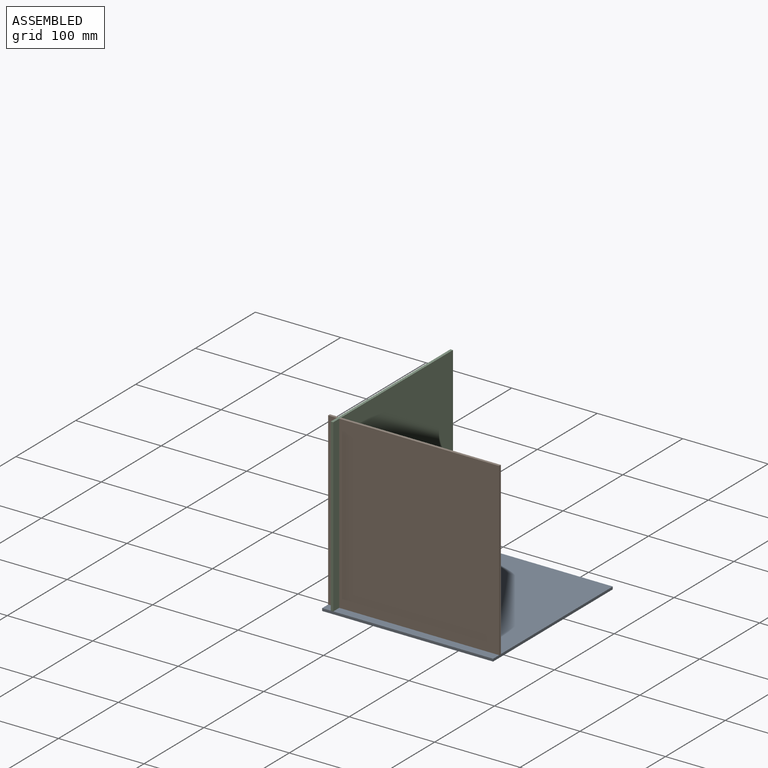
[diagram: assembled view]
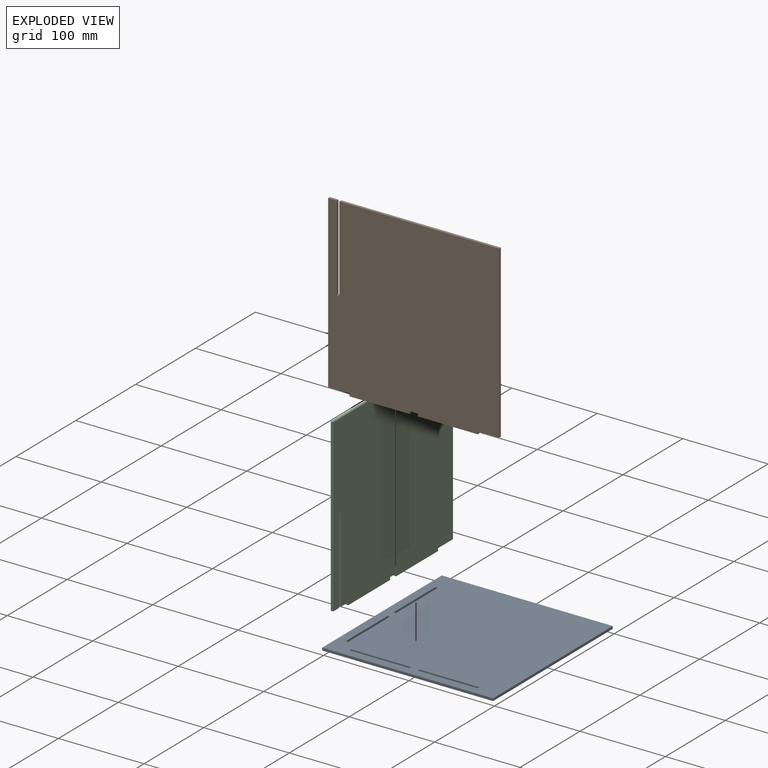
[diagram: exploded view]
GUIDED TOUR — MATED ASSEMBLY (Onshape document 3c1b18b29e7f86476bbb0f8e, AutoMate assembly 3c1b18b29e7f86476bbb0f8e_5ff9b196401ef1f9431cde9a_0508b4e4f888a0a57023cb8f_default)

This assembly has 3 components, labeled P0..P2 below (a component is one placed occurrence of a part; the same part can appear more than once), held together by 6 mates. A mate is a constraint between two components; its type names the relative motion it leaves free:
  PLANAR — leaves sliding in the plane through the listed point (normal = the listed direction) and rotation about that normal free.
Axis/direction vectors are unit vectors and 'through' points are millimeter coordinates, both in the assembly's world frame.

MATES
  1. PLANAR "Planar 4": P2 <-> P1, direction (0.000, -1.000, 0.000) through (-89.45, -87.95, 50.00) mm
  2. PLANAR "Planar 3": P2 <-> P1, direction (0.000, 0.000, -1.000) through (-89.45, -89.45, 100.00) mm
  3. PLANAR "Planar 2": P2 <-> P1, direction (1.000, 0.000, 0.000) through (-87.95, -0.29, 99.31) mm
  4. PLANAR "Planar 6": P1 <-> P0, direction (-1.000, 0.000, 0.000) through (-100.95, -89.45, 100.00) mm
  5. PLANAR "Planar 5": P2 <-> P0, direction (0.000, -1.000, 0.000) through (-89.45, -100.95, 100.00) mm
  6. PLANAR "Planar 1": P1 <-> P0, direction (0.000, 0.000, -1.000) through (-88.45, -89.45, 0.00) mm

ASSEMBLY ORDER
  1. P2 — the base component [order verified]
  2. P0 [order verified]
  3. P1 [order verified]
Order-tag legend:
  [order verified] — this step's position reverses a verified removal order: the component was checked to insert without passing through the ones already placed.

Of the 3 components, 3 carry the full construction recipe — the FeatureScript program that regenerates the part's solid from scratch; the rest are supplied as boundary geometry only.
Each toured component is shown spotlighted twice — in the assembled view, then in the exploded view, where a leader line traces a displaced component back to its assembled socket (saturated green if recipe-attached, orange if geometry-only; every other component desaturated gray) — followed by its recipe or geometry summary and the mates that hold it.
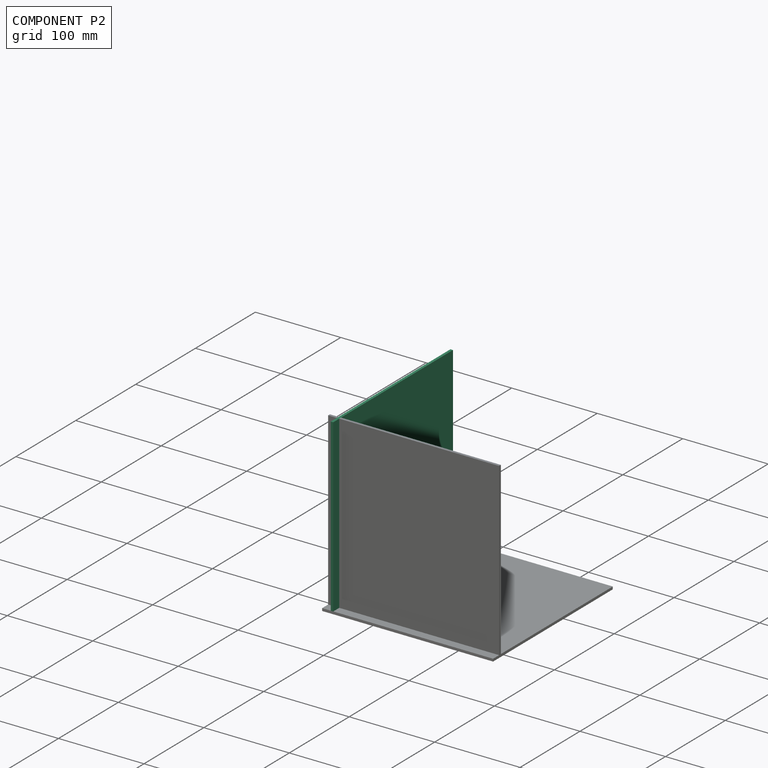
[diagram: component P2 — assembled]
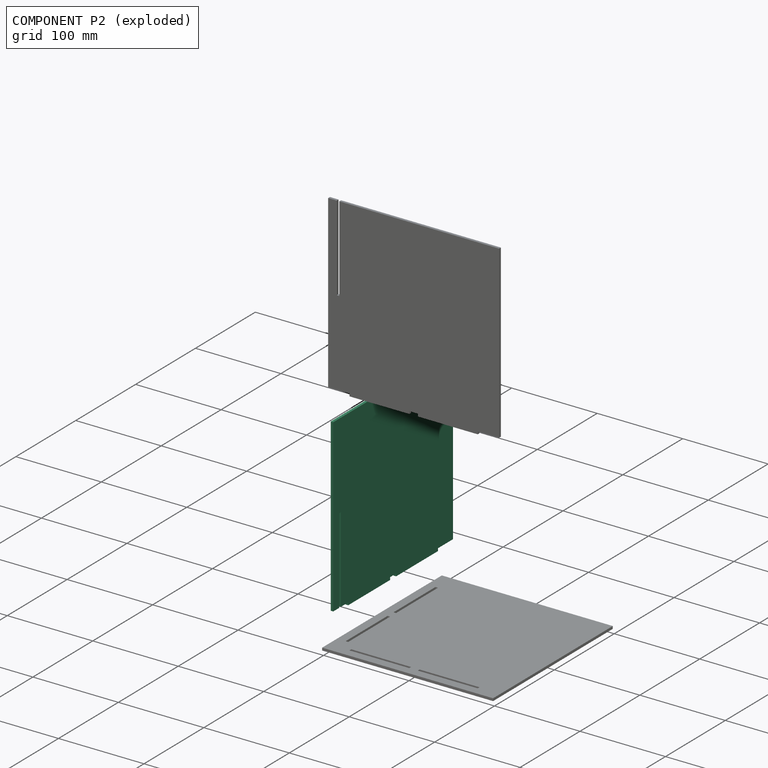
[diagram: component P2 — exploded]
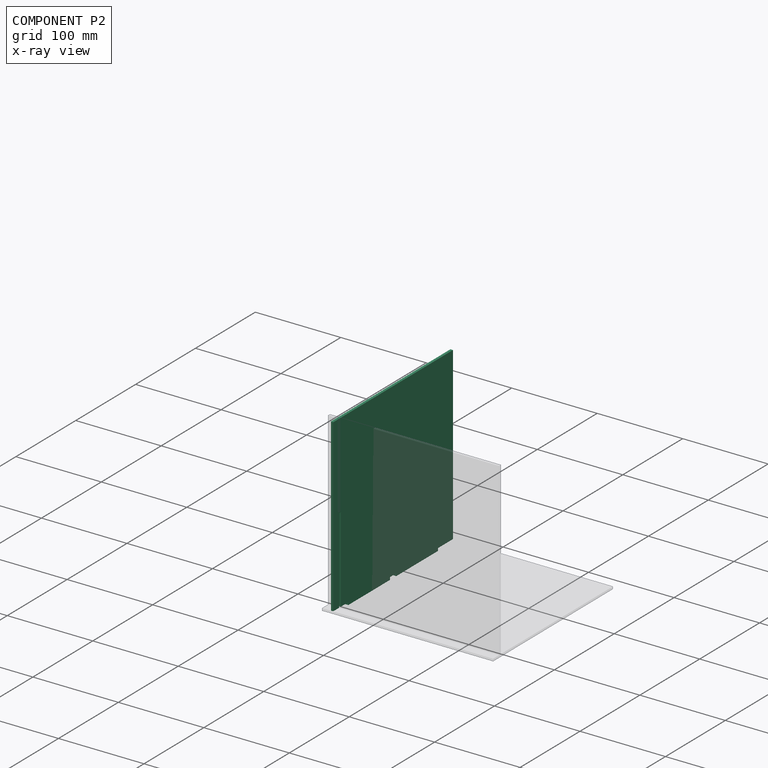
[diagram: component P2 — x-ray view]
COMPONENT P2 — recipe-attached (CADFS 00972658, mesh-verified: the recipe's output STEP matches this component's geometry to below the mesh-comparison resolution (tessellation chordal tolerance ~0.427 mm)).
Held by: PLANAR mate "Planar 4" to P1; PLANAR mate "Planar 3" to P1; PLANAR mate "Planar 2" to P1; PLANAR mate "Planar 5" to P0.
Construction recipe (FeatureScript — the CAD program that rebuilds this solid; sketch coordinates are in the units given by the * unit suffixes, e.g. mm):

FeatureScript 1511;
import(path : "onshape/std/geometry.fs", version : "1511.0");
import(path : "onshape/std/common.fs", version : "1511.0");
const mm = millimeter;
const VERTEX = EntityType.VERTEX;
const EDGE = EntityType.EDGE;
const FACE = EntityType.FACE;
const BODY = EntityType.BODY;
function v(x, y){return vector(x, y);}
function OD(order){return orderDisambiguation(order);}
function OSD(set){return originalSetDisambiguation(set);}
function TD(topology){return topologyDisambiguation(topology);}
function TDD(query){return trueDependencyDisambiguation(query);}
function sQuery(a, b, c) {return sketchEntityQuery(a, b, c);}

annotation { "Feature Type Name" : "Feature", "Feature Type Description" : "" }
export const myFeature = defineFeature(function(context is Context, id is Id, definition is map)
    precondition{}
    {
        {
            var Q0;
            Q0=qCreatedBy(makeId("Front.planeOp"),FACE);
            var sketch = newSketch(context, id + "F0", { "sketchPlane" : qUnion([Q0])});
            skLineSegment(sketch, "E0.bottom", {"start": v(-81.86, 146.71) * mm, "end": v(118.14, 146.71) * mm});
            skLineSegment(sketch, "E0.top", {"start": v(-81.86, -53.29) * mm, "end": v(118.14, -53.29) * mm});
            skLineSegment(sketch, "E0.left", {"start": v(-81.86, 146.71) * mm, "end": v(-81.86, -53.29) * mm});
            skLineSegment(sketch, "E0.right", {"start": v(118.14, 146.71) * mm, "end": v(118.14, -53.29) * mm});
            skLineSegment(sketch, "E1.bottom", {"start": v(-71.86, -53.29) * mm, "end": v(-68.86, -53.29) * mm});
            skLineSegment(sketch, "E1.top", {"start": v(-71.86, 46.71) * mm, "end": v(-68.86, 46.71) * mm});
            skLineSegment(sketch, "E1.left", {"start": v(-71.86, -53.29) * mm, "end": v(-71.86, 46.71) * mm});
            skLineSegment(sketch, "E1.right", {"start": v(-68.86, -53.29) * mm, "end": v(-68.86, 46.71) * mm});
            skPoint(sketch, "E2", {"position": v(-81.86, 46.71) * mm});
            skLineSegment(sketch, "E3.left", {"start": v(118.14, -43.29) * mm, "end": v(118.14, -40.29) * mm});
            skPoint(sketch, "E4", {"position": v(18.14, -53.29) * mm});
            skLineSegment(sketch, "E5", {"start": v(-56.86, 146.71) * mm, "end": v(-56.86, 149.71) * mm});
            skLineSegment(sketch, "E6", {"start": v(-56.86, 149.71) * mm, "end": v(13.14, 149.71) * mm});
            skLineSegment(sketch, "E7", {"start": v(13.14, 149.71) * mm, "end": v(13.14, 146.71) * mm});
            skLineSegment(sketch, "E8", {"start": v(23.14, 146.71) * mm, "end": v(23.14, 149.71) * mm});
            skLineSegment(sketch, "E9", {"start": v(23.14, 149.71) * mm, "end": v(93.14, 149.71) * mm});
            skLineSegment(sketch, "E10", {"start": v(93.14, 149.71) * mm, "end": v(93.14, 146.71) * mm});
            skSolve(sketch);
        }
        {
            var Q0;
            {var subQ7=sQuery(id+"F0.wireOp",EDGE,"E0.bottom");Q0=makeQuery(id+"F0.imprint","IMPRINT",FACE,{"disambiguationData":[TD([[makeQuery(id+"F0.imprint","IMPRINT",EDGE,{"derivedFrom":subQ7}),-1.0]])]});}
            var Q1;
            {var subQ0=sQuery(id+"F0.wireOp",EDGE,"E5");Q1=makeQuery(id+"F0.imprint","IMPRINT",FACE,{"disambiguationData":[TD([[makeQuery(id+"F0.imprint","IMPRINT",EDGE,{"derivedFrom":subQ0}),-1.0]])]});}
            var Q2;
            {var subQ0=sQuery(id+"F0.wireOp",EDGE,"E8");Q2=makeQuery(id+"F0.imprint","IMPRINT",FACE,{"disambiguationData":[TD([[makeQuery(id+"F0.imprint","IMPRINT",EDGE,{"derivedFrom":subQ0}),-1.0]])]});}
            extrude(context, id + "F1", {"entities" : qUnion([Q0, Q1, Q2]), "depth" : 3 * mm, "offsetDistance" : 25 * mm});
        }
    });
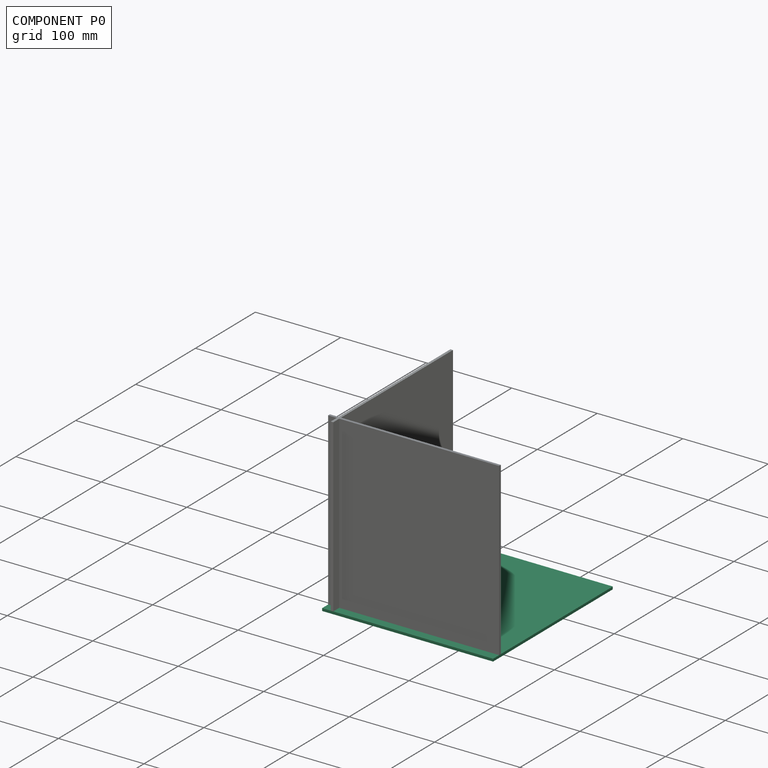
[diagram: component P0 — assembled]
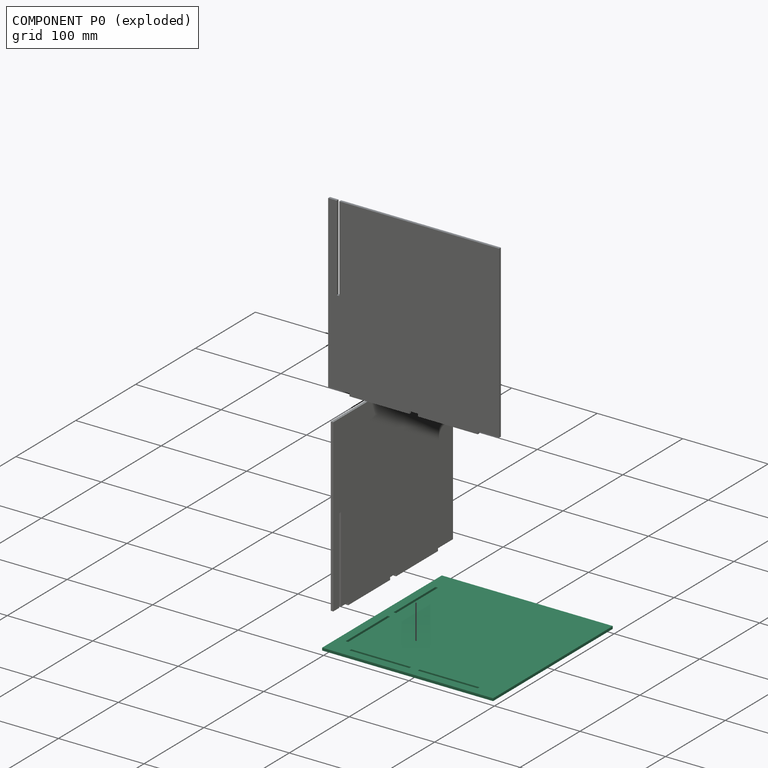
[diagram: component P0 — exploded]
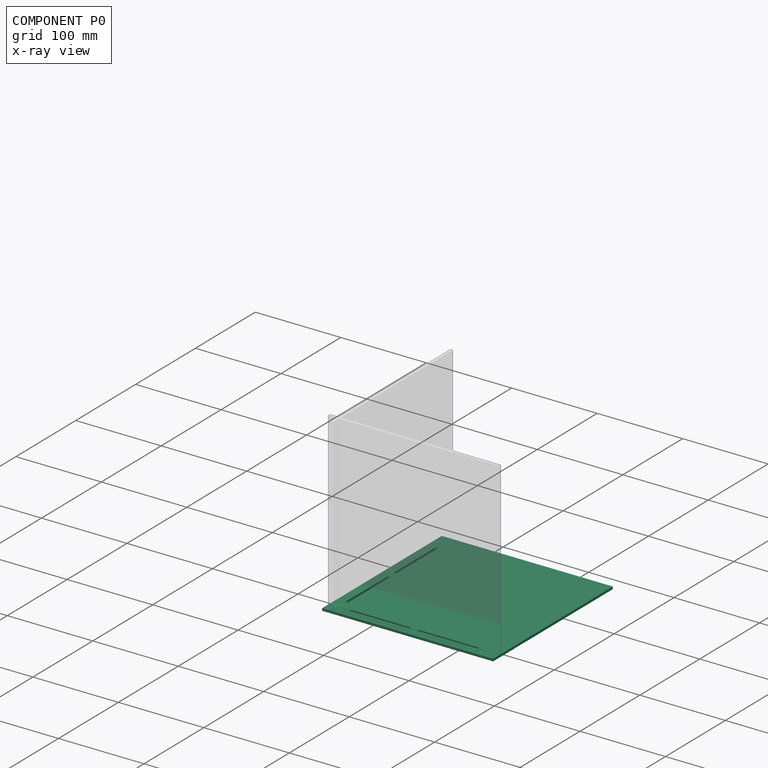
[diagram: component P0 — x-ray view]
COMPONENT P0 — recipe-attached (CADFS 00972657, mesh-verified: the recipe's output STEP matches this component's geometry to below the mesh-comparison resolution (tessellation chordal tolerance ~0.424 mm)).
Held by: PLANAR mate "Planar 6" to P1; PLANAR mate "Planar 5" to P2; PLANAR mate "Planar 1" to P1.
Construction recipe (FeatureScript — the CAD program that rebuilds this solid; sketch coordinates are in the units given by the * unit suffixes, e.g. mm):

FeatureScript 1511;
import(path : "onshape/std/geometry.fs", version : "1511.0");
import(path : "onshape/std/common.fs", version : "1511.0");
const mm = millimeter;
const VERTEX = EntityType.VERTEX;
const EDGE = EntityType.EDGE;
const FACE = EntityType.FACE;
const BODY = EntityType.BODY;
function v(x, y){return vector(x, y);}
function OD(order){return orderDisambiguation(order);}
function OSD(set){return originalSetDisambiguation(set);}
function TD(topology){return topologyDisambiguation(topology);}
function TDD(query){return trueDependencyDisambiguation(query);}
function sQuery(a, b, c) {return sketchEntityQuery(a, b, c);}

annotation { "Feature Type Name" : "Feature", "Feature Type Description" : "" }
export const myFeature = defineFeature(function(context is Context, id is Id, definition is map)
    precondition{}
    {
        {
            var Q0;
            Q0=qCreatedBy(makeId("Top.planeOp"),FACE);
            var sketch = newSketch(context, id + "F0", { "sketchPlane" : qUnion([Q0])});
            skLineSegment(sketch, "E0.bottom", {"start": v(0, 200) * mm, "end": v(200, 200) * mm});
            skLineSegment(sketch, "E0.top", {"start": v(0, 0) * mm, "end": v(200, 0) * mm});
            skLineSegment(sketch, "E0.left", {"start": v(0, 200) * mm, "end": v(0, 0) * mm});
            skLineSegment(sketch, "E0.right", {"start": v(200, 200) * mm, "end": v(200, 0) * mm});
            skPoint(sketch, "E1", {"position": v(0, 100) * mm});
            skPoint(sketch, "E2", {"position": v(100, 0) * mm});
            skLineSegment(sketch, "E3.bottom", {"start": v(25, 10) * mm, "end": v(95, 10) * mm});
            skLineSegment(sketch, "E3.top", {"start": v(25, 13) * mm, "end": v(95, 13) * mm});
            skLineSegment(sketch, "E3.left", {"start": v(25, 10) * mm, "end": v(25, 13) * mm});
            skLineSegment(sketch, "E3.right", {"start": v(95, 10) * mm, "end": v(95, 13) * mm});
            skLineSegment(sketch, "E4.bottom", {"start": v(105, 10) * mm, "end": v(175, 10) * mm});
            skLineSegment(sketch, "E4.top", {"start": v(105, 13) * mm, "end": v(175, 13) * mm});
            skLineSegment(sketch, "E4.left", {"start": v(105, 10) * mm, "end": v(105, 13) * mm});
            skLineSegment(sketch, "E4.right", {"start": v(175, 10) * mm, "end": v(175, 13) * mm});
            skLineSegment(sketch, "E5.bottom", {"start": v(10, 175) * mm, "end": v(13, 175) * mm});
            skLineSegment(sketch, "E5.top", {"start": v(10, 105) * mm, "end": v(13, 105) * mm});
            skLineSegment(sketch, "E5.left", {"start": v(10, 175) * mm, "end": v(10, 105) * mm});
            skLineSegment(sketch, "E5.right", {"start": v(13, 175) * mm, "end": v(13, 105) * mm});
            skLineSegment(sketch, "E6.bottom", {"start": v(10, 95) * mm, "end": v(13, 95) * mm});
            skLineSegment(sketch, "E6.top", {"start": v(10, 25) * mm, "end": v(13, 25) * mm});
            skLineSegment(sketch, "E6.left", {"start": v(10, 95) * mm, "end": v(10, 25) * mm});
            skLineSegment(sketch, "E6.right", {"start": v(13, 95) * mm, "end": v(13, 25) * mm});
            skSolve(sketch);
        }
        {
            var Q0;
            Q0=makeQuery(id+"F0.imprint","IMPRINT",FACE,{"disambiguationData":[TD([[makeQuery(id+"F0.imprint","IMPRINT",EDGE,{"derivedFrom":sQuery(id+"F0.wireOp",EDGE,"E0.bottom")}),-1.0]])]});
            extrude(context, id + "F1", {"entities" : qUnion([Q0]), "depth" : 3 * mm, "offsetDistance" : 25 * mm});
        }
    });
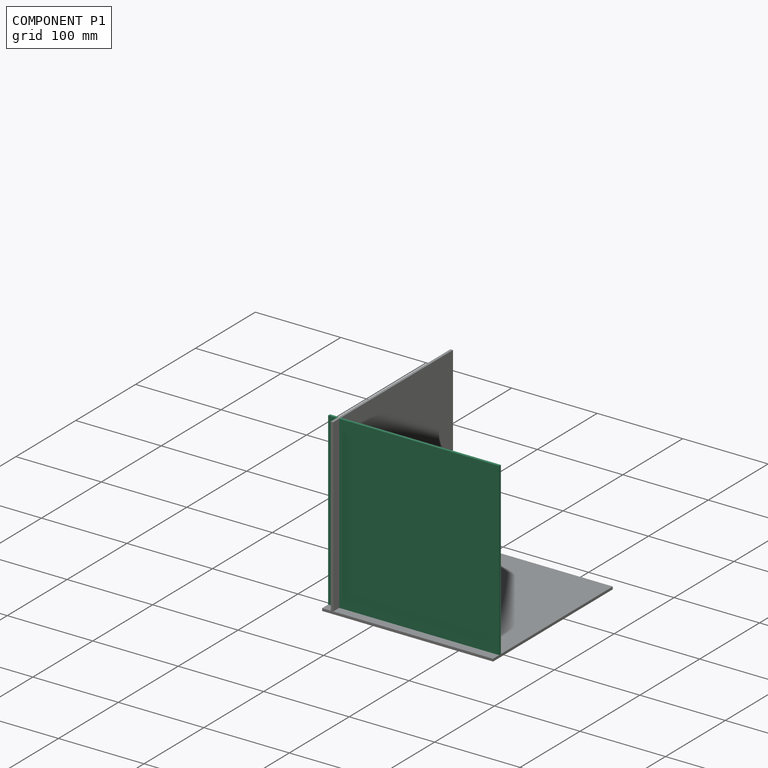
[diagram: component P1 — assembled]
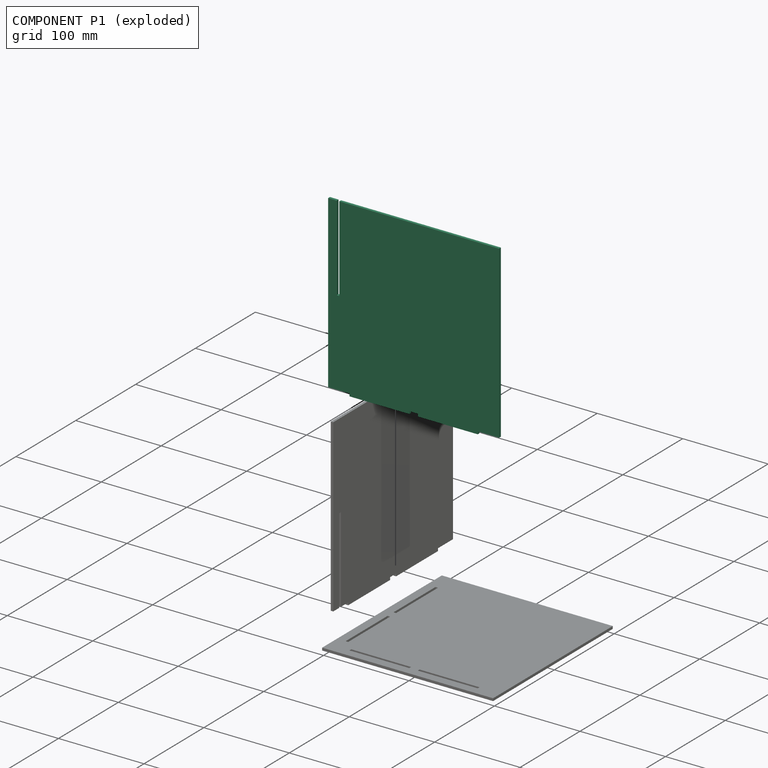
[diagram: component P1 — exploded]
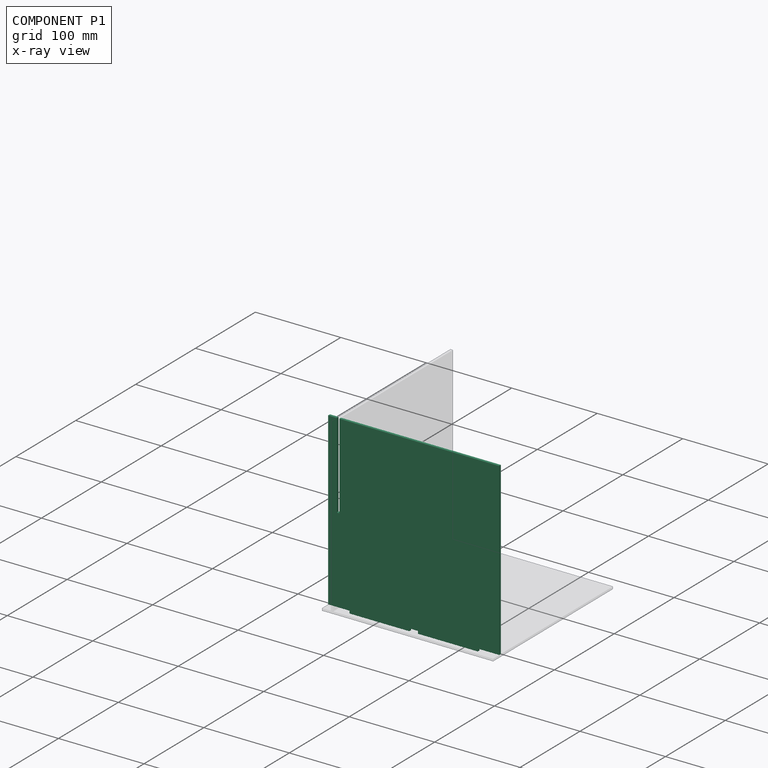
[diagram: component P1 — x-ray view]
COMPONENT P1 — recipe-attached (CADFS 00972658, mesh-verified: the recipe's output STEP matches this component's geometry to below the mesh-comparison resolution (tessellation chordal tolerance ~0.427 mm)).
Held by: PLANAR mate "Planar 4" to P2; PLANAR mate "Planar 3" to P2; PLANAR mate "Planar 2" to P2; PLANAR mate "Planar 6" to P0; PLANAR mate "Planar 1" to P0.
Construction recipe (FeatureScript — the CAD program that rebuilds this solid; sketch coordinates are in the units given by the * unit suffixes, e.g. mm):

FeatureScript 1511;
import(path : "onshape/std/geometry.fs", version : "1511.0");
import(path : "onshape/std/common.fs", version : "1511.0");
const mm = millimeter;
const VERTEX = EntityType.VERTEX;
const EDGE = EntityType.EDGE;
const FACE = EntityType.FACE;
const BODY = EntityType.BODY;
function v(x, y){return vector(x, y);}
function OD(order){return orderDisambiguation(order);}
function OSD(set){return originalSetDisambiguation(set);}
function TD(topology){return topologyDisambiguation(topology);}
function TDD(query){return trueDependencyDisambiguation(query);}
function sQuery(a, b, c) {return sketchEntityQuery(a, b, c);}

annotation { "Feature Type Name" : "Feature", "Feature Type Description" : "" }
export const myFeature = defineFeature(function(context is Context, id is Id, definition is map)
    precondition{}
    {
        {
            var Q0;
            Q0=qCreatedBy(makeId("Front.planeOp"),FACE);
            var sketch = newSketch(context, id + "F0", { "sketchPlane" : qUnion([Q0])});
            skLineSegment(sketch, "E0.bottom", {"start": v(-81.86, 146.71) * mm, "end": v(118.14, 146.71) * mm});
            skLineSegment(sketch, "E0.top", {"start": v(-81.86, -53.29) * mm, "end": v(118.14, -53.29) * mm});
            skLineSegment(sketch, "E0.left", {"start": v(-81.86, 146.71) * mm, "end": v(-81.86, -53.29) * mm});
            skLineSegment(sketch, "E0.right", {"start": v(118.14, 146.71) * mm, "end": v(118.14, -53.29) * mm});
            skLineSegment(sketch, "E1.bottom", {"start": v(-71.86, -53.29) * mm, "end": v(-68.86, -53.29) * mm});
            skLineSegment(sketch, "E1.top", {"start": v(-71.86, 46.71) * mm, "end": v(-68.86, 46.71) * mm});
            skLineSegment(sketch, "E1.left", {"start": v(-71.86, -53.29) * mm, "end": v(-71.86, 46.71) * mm});
            skLineSegment(sketch, "E1.right", {"start": v(-68.86, -53.29) * mm, "end": v(-68.86, 46.71) * mm});
            skPoint(sketch, "E2", {"position": v(-81.86, 46.71) * mm});
            skLineSegment(sketch, "E3.left", {"start": v(118.14, -43.29) * mm, "end": v(118.14, -40.29) * mm});
            skPoint(sketch, "E4", {"position": v(18.14, -53.29) * mm});
            skLineSegment(sketch, "E5", {"start": v(-56.86, 146.71) * mm, "end": v(-56.86, 149.71) * mm});
            skLineSegment(sketch, "E6", {"start": v(-56.86, 149.71) * mm, "end": v(13.14, 149.71) * mm});
            skLineSegment(sketch, "E7", {"start": v(13.14, 149.71) * mm, "end": v(13.14, 146.71) * mm});
            skLineSegment(sketch, "E8", {"start": v(23.14, 146.71) * mm, "end": v(23.14, 149.71) * mm});
            skLineSegment(sketch, "E9", {"start": v(23.14, 149.71) * mm, "end": v(93.14, 149.71) * mm});
            skLineSegment(sketch, "E10", {"start": v(93.14, 149.71) * mm, "end": v(93.14, 146.71) * mm});
            skSolve(sketch);
        }
        {
            var Q0;
            {var subQ7=sQuery(id+"F0.wireOp",EDGE,"E0.bottom");Q0=makeQuery(id+"F0.imprint","IMPRINT",FACE,{"disambiguationData":[TD([[makeQuery(id+"F0.imprint","IMPRINT",EDGE,{"derivedFrom":subQ7}),-1.0]])]});}
            var Q1;
            {var subQ0=sQuery(id+"F0.wireOp",EDGE,"E5");Q1=makeQuery(id+"F0.imprint","IMPRINT",FACE,{"disambiguationData":[TD([[makeQuery(id+"F0.imprint","IMPRINT",EDGE,{"derivedFrom":subQ0}),-1.0]])]});}
            var Q2;
            {var subQ0=sQuery(id+"F0.wireOp",EDGE,"E8");Q2=makeQuery(id+"F0.imprint","IMPRINT",FACE,{"disambiguationData":[TD([[makeQuery(id+"F0.imprint","IMPRINT",EDGE,{"derivedFrom":subQ0}),-1.0]])]});}
            extrude(context, id + "F1", {"entities" : qUnion([Q0, Q1, Q2]), "depth" : 3 * mm, "offsetDistance" : 25 * mm});
        }
    });
PROVENANCE & LICENSES
Assembly (occurrences, transforms, mates, per-part STEP geometry): AutoMate dataset, Zenodo record 7776208, CC0.
Construction recipes: CADFS (HuggingFace VladPyatov/CADFS, CC-BY-4.0, layered over the ABC dataset), FeatureScript reconstruction programs keyed by ABC model id.
Join: ABC meta listings map ABC model id -> Onshape documentId; within a shared document, parts are matched by geometric signature (bounding-box dims + volume at 0.1% relative tolerance, exact B-rep face/solid counts).
Verification: 3 of this assembly's 3 components carry a recipe attachment, and every attachment is mesh-verified: the CADFS STEP and the AutoMate member STEP were compared as meshes in their shared local frame (symmetric sampled-point-to-mesh distance); worst across the 3 attachments: below the mesh-comparison resolution (tessellation chordal tolerance ~0.427 mm) on a 285 mm part.
Renders: orthographic iso camera (az 35 / el 25); the floor grid conveys scale (grid pitch printed in each image; no ruler). In the exploded view each component is displaced by its stored offset vector: the offsets alone carry the explosion direction (mate normal/axis signs are not orientation cues and do not encode it), and separation distances are assigned per mate-chain, not proportionally to assembly-order depth.
